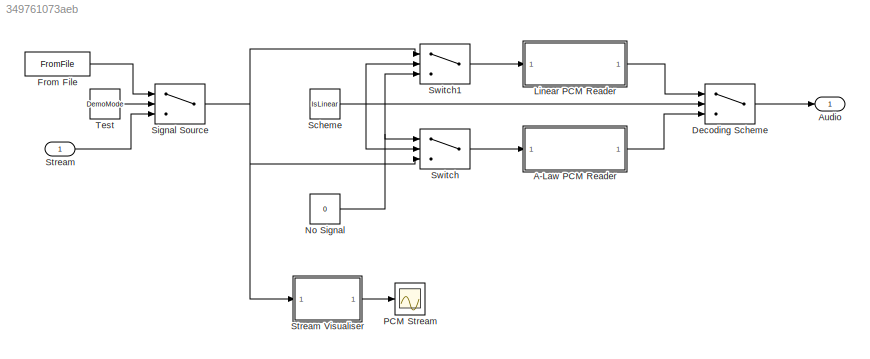
MODEL slx_349761073aeb
KIND model
CONFIG AbsTol = auto
CONFIG EnableMultiTasking = off
CONFIG FixedStep = 1/(48e-7)
CONFIG MaxStep = 1e-5
CONFIG MinStep = auto
CONFIG RelTol = 1e-3
CONFIG SampleTimeConstraint = Unconstrained
CONFIG SolverName = VariableStepAuto
CONFIG StartTime = 0.0
CONFIG StopTime = 1e-3 - eps
WORKSPACE source: mxarray member
WORKSPACE BitDepth = 4
WORKSPACE DecimationFactor = 3
WORKSPACE DemoMode = 1
WORKSPACE IirDenominatorCoefficients = [1 1]
WORKSPACE IirNumeratorCoefficients = [1 1]
WORKSPACE IsLinear = 1
WORKSPACE LowerSaturation = -2.5
WORKSPACE NoiseGate = 0
WORKSPACE SampleRate = 48000
WORKSPACE UpperSaturation = 2.5
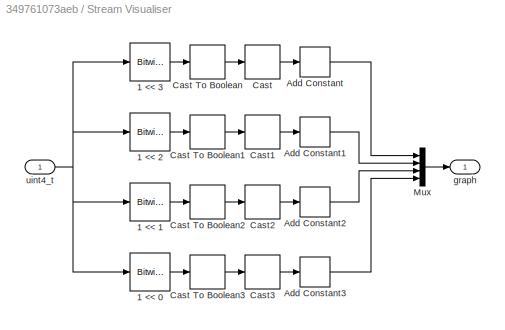
BLOCK [SubSystem]  Stream Visualiser
  Ports = [1, 1]
  RequestExecContextInheritance = off
BLOCK [Reference]  Stream Visualiser/1 << 0  REF=simulink/Logic and Bit
Operations/Bitwise
Operator
  Ports = [1, 1]
  SourceBlock = simulink/Logic and Bit\nOperations/Bitwise\nOperator
  SourceProductBaseCode = SL
  SourceType = Bitwise Operator
BLOCK [Reference]  Stream Visualiser/1 << 1  REF=simulink/Logic and Bit
Operations/Bitwise
Operator
  Ports = [1, 1]
  SourceBlock = simulink/Logic and Bit\nOperations/Bitwise\nOperator
  SourceProductBaseCode = SL
  SourceType = Bitwise Operator
BLOCK [Reference]  Stream Visualiser/1 << 2  REF=simulink/Logic and Bit
Operations/Bitwise
Operator
  Ports = [1, 1]
  SourceBlock = simulink/Logic and Bit\nOperations/Bitwise\nOperator
  SourceProductBaseCode = SL
  SourceType = Bitwise Operator
BLOCK [Reference]  Stream Visualiser/1 << 3  REF=simulink/Logic and Bit
Operations/Bitwise
Operator
  Ports = [1, 1]
  SourceBlock = simulink/Logic and Bit\nOperations/Bitwise\nOperator
  SourceProductBaseCode = SL
  SourceType = Bitwise Operator
BLOCK [Bias]  Stream Visualiser/Add Constant
  Bias = 6
  SaturateOnIntegerOverflow = off
BLOCK [Bias]  Stream Visualiser/Add Constant1
  Bias = 4
  SaturateOnIntegerOverflow = off
BLOCK [Bias]  Stream Visualiser/Add Constant2
  Bias = 2
  SaturateOnIntegerOverflow = off
BLOCK [Bias]  Stream Visualiser/Add Constant3
  SaturateOnIntegerOverflow = off
BLOCK [DataTypeConversion]  Stream Visualiser/Cast
  OutDataTypeStr = int16
  RndMeth = Floor
  SaturateOnIntegerOverflow = off
BLOCK [DataTypeConversion]  Stream Visualiser/Cast To Boolean
  OutDataTypeStr = boolean
  RndMeth = Floor
  SaturateOnIntegerOverflow = off
BLOCK [DataTypeConversion]  Stream Visualiser/Cast To Boolean1
  OutDataTypeStr = boolean
  RndMeth = Floor
  SaturateOnIntegerOverflow = off
BLOCK [DataTypeConversion]  Stream Visualiser/Cast To Boolean2
  OutDataTypeStr = boolean
  RndMeth = Floor
  SaturateOnIntegerOverflow = off
BLOCK [DataTypeConversion]  Stream Visualiser/Cast To Boolean3
  OutDataTypeStr = boolean
  RndMeth = Floor
  SaturateOnIntegerOverflow = off
BLOCK [DataTypeConversion]  Stream Visualiser/Cast1
  OutDataTypeStr = int16
  RndMeth = Floor
  SaturateOnIntegerOverflow = off
BLOCK [DataTypeConversion]  Stream Visualiser/Cast2
  OutDataTypeStr = int16
  RndMeth = Floor
  SaturateOnIntegerOverflow = off
BLOCK [DataTypeConversion]  Stream Visualiser/Cast3
  OutDataTypeStr = int16
  RndMeth = Floor
  SaturateOnIntegerOverflow = off
BLOCK [Mux]  Stream Visualiser/Mux
  DisplayOption = bar
  Ports = [4, 1]
BLOCK [Outport]  Stream Visualiser/graph
BLOCK [Inport]  Stream Visualiser/uint4_t
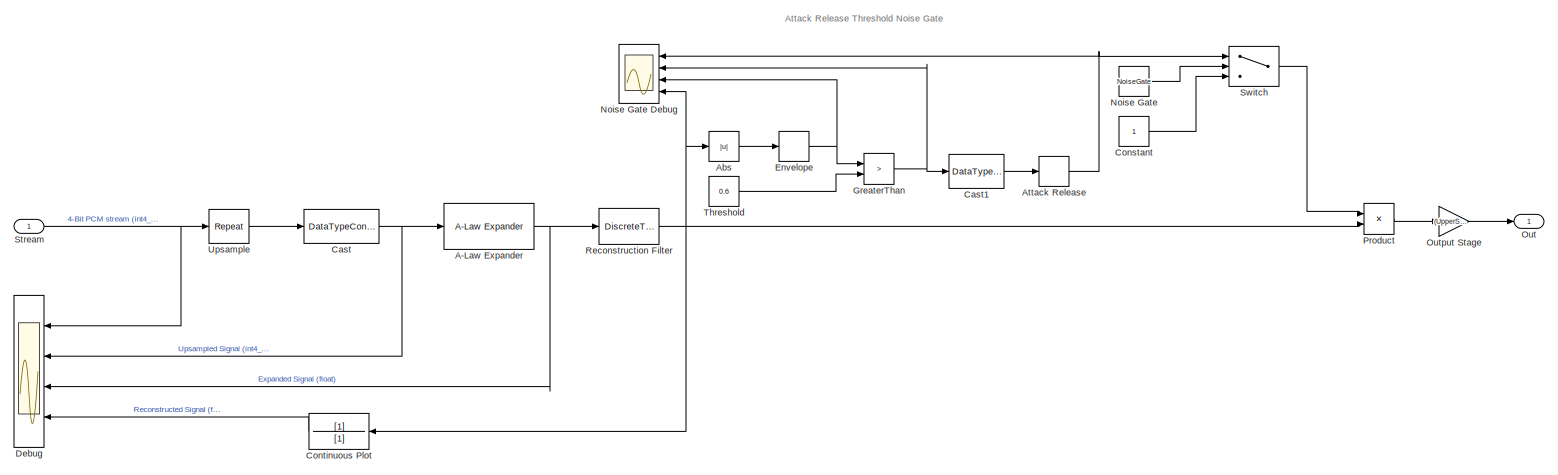
[diagram: A-Law PCM Reader - part 1/1, most of the canvas]
BLOCK [SubSystem] A-Law PCM Reader
  Ports = [1, 1]
  RequestExecContextInheritance = off
BLOCK [Reference] A-Law PCM Reader/A-Law Expander  REF=commsrccod2/A-Law
Expander
  Ports = [1, 1]
  SourceBlock = commsrccod2/A-Law\nExpander
  SourceProductBaseCode = CM
  SourceType = A-Law Expander
BLOCK [Abs] A-Law PCM Reader/Abs
  SaturateOnIntegerOverflow = off
BLOCK [RateLimiter] A-Law PCM Reader/Attack Release
  FallingSlewLimit = -SampleRate/3000
  RisingSlewLimit = SampleRate/300
  SampleTimeMode = inherited
BLOCK [DataTypeConversion] A-Law PCM Reader/Cast
  OutDataTypeStr = double
  RndMeth = Floor
  SaturateOnIntegerOverflow = off
BLOCK [DataTypeConversion] A-Law PCM Reader/Cast1
  OutDataTypeStr = double
  RndMeth = Floor
  SaturateOnIntegerOverflow = off
BLOCK [Constant] A-Law PCM Reader/Constant
BLOCK [TransferFcn] A-Law PCM Reader/Continuous Plot
  ContinuousStateAttributes = ''Continuous"
  Denominator = [1]
BLOCK [Scope] A-Law PCM Reader/Debug
  DefaultConfigurationName = spbscopes.TimeScopeBlockCfg
  Floating = off
  NumInputPorts = 4
  Ports = [4]
  ScopeSpecificationString = spbscopes.TimeScopeBlockCfg('CurrentConfiguration', extmgr.ConfigurationSet(extmgr.Configuration('Core','General UI',true,'DisplayFullSourceName',true),extmgr.Configuration('Core','Source UI',true),extmgr.Configuration('Sources','WiredSimulink',true,'DataLoggingVariableName','ScopeData2'),extmgr.Configuration('Visuals','Time Domain',true,'DisplayPropertyDefaults',struct('MinYLimReal','-2.00277','M...<+1992ch>
  UserDataPersistent = on
BLOCK [RateLimiter] A-Law PCM Reader/Envelope
  FallingSlewLimit = -SampleRate/1000
  RisingSlewLimit = SampleRate/4
  SampleTimeMode = inherited
BLOCK [RelationalOperator] A-Law PCM Reader/GreaterThan
  InputSameDT = off
  Operator = >
  OutDataTypeStr = boolean
  Ports = [2, 1]
  RndMeth = Simplest
BLOCK [Constant] A-Law PCM Reader/Noise Gate
  Value = NoiseGate
BLOCK [Scope] A-Law PCM Reader/Noise Gate Debug
  DefaultConfigurationName = spbscopes.TimeScopeBlockCfg
  Floating = off
  NumInputPorts = 4
  Ports = [4]
  ScopeSpecificationString = spbscopes.TimeScopeBlockCfg('CurrentConfiguration', extmgr.ConfigurationSet(extmgr.Configuration('Core','General UI',true),extmgr.Configuration('Core','Source UI',true),extmgr.Configuration('Sources','WiredSimulink',true,'DataLoggingVariableName','ScopeData1'),extmgr.Configuration('Visuals','Time Domain',true,'DisplayPropertyDefaults',struct('MinYLimReal','-4.71127','MaxYLimReal','8.68196','YLabel...<+1831ch>
  UserDataPersistent = on
BLOCK [Outport] A-Law PCM Reader/Out
BLOCK [Gain] A-Law PCM Reader/Output Stage
  Gain = (UpperSaturation - LowerSaturation)/(2^BitDepth - 1)
BLOCK [Product] A-Law PCM Reader/Product
  Ports = [2, 1]
BLOCK [DiscreteTransferFcn] A-Law PCM Reader/Reconstruction Filter
  Denominator = IirDenominatorCoefficients
  InputPortMap = u0
  Numerator = IirNumeratorCoefficients
  Ports = [1, 1]
BLOCK [Inport] A-Law PCM Reader/Stream
BLOCK [Switch] A-Law PCM Reader/Switch
  Criteria = u2 > Threshold
  InputSameDT = off
  SaturateOnIntegerOverflow = off
BLOCK [Constant] A-Law PCM Reader/Threshold
  Value = 0.6
BLOCK [Reference] A-Law PCM Reader/Upsample  REF=dspsigops/Repeat
  Ports = [1, 1]
  SourceBlock = dspsigops/Repeat
  SourceProductBaseCode = DS
  SourceType = Repeat
  UserDataPersistent = on
BLOCK [Outport] Audio
  OutDataTypeStr = double
  VarSizeSig = No
BLOCK [Switch] Decoding Scheme
  Criteria = u2 > Threshold
  InputSameDT = off
  SaturateOnIntegerOverflow = off
BLOCK [FromFile] From File
  ExtrapolationBeforeFirstDataPoint = Hold first value
  FileName = test_stream.mat
  InterpolationWithinTimeRange = Zero order hold
  OutDataTypeStr = int16
  SampleTime = DecimationFactor/SampleRate
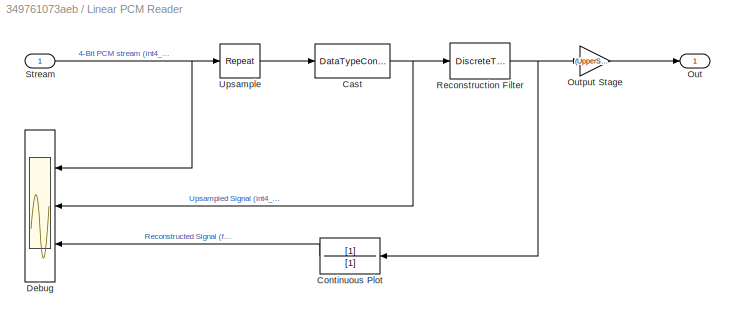
BLOCK [SubSystem] Linear PCM Reader
  Ports = [1, 1]
  RequestExecContextInheritance = off
BLOCK [DataTypeConversion] Linear PCM Reader/Cast
  OutDataTypeStr = double
  RndMeth = Floor
  SaturateOnIntegerOverflow = off
BLOCK [TransferFcn] Linear PCM Reader/Continuous Plot
  ContinuousStateAttributes = ''Continuous"
  Denominator = [1]
BLOCK [Scope] Linear PCM Reader/Debug
  DefaultConfigurationName = spbscopes.TimeScopeBlockCfg
  Floating = off
  NumInputPorts = 3
  Ports = [3]
  ScopeSpecificationString = spbscopes.TimeScopeBlockCfg('CurrentConfiguration', extmgr.ConfigurationSet(extmgr.Configuration('Core','General UI',true,'DisplayFullSourceName',true),extmgr.Configuration('Core','Source UI',true),extmgr.Configuration('Sources','WiredSimulink',true,'DataLoggingVariableName','ScopeData1'),extmgr.Configuration('Visuals','Time Domain',true,'DisplayPropertyDefaults',struct('MinYLimReal','-8.75','MaxY...<+1861ch>
  UserDataPersistent = on
BLOCK [Outport] Linear PCM Reader/Out
BLOCK [Gain] Linear PCM Reader/Output Stage
  Gain = (UpperSaturation - LowerSaturation)/(2^BitDepth - 1)
BLOCK [DiscreteTransferFcn] Linear PCM Reader/Reconstruction Filter
  Denominator = IirDenominatorCoefficients
  InputPortMap = u0
  Numerator = IirNumeratorCoefficients
  Ports = [1, 1]
BLOCK [Inport] Linear PCM Reader/Stream
BLOCK [Reference] Linear PCM Reader/Upsample  REF=dspsigops/Repeat
  Ports = [1, 1]
  SourceBlock = dspsigops/Repeat
  SourceProductBaseCode = DS
  SourceType = Repeat
  UserDataPersistent = on
BLOCK [Constant] No Signal
  OutDataTypeStr = int16
  SampleTime = DecimationFactor/SampleRate
  Value = 0
BLOCK [Scope] PCM Stream
  Floating = off
  NumInputPorts = 1
  Ports = [1]
  ScopeSpecificationString = Simulink.scopes.TimeScopeBlockCfg('CurrentConfiguration', extmgr.ConfigurationSet(extmgr.Configuration('Core','General UI',true,'DisplayFullSourceName',true),extmgr.Configuration('Core','Source UI',true),extmgr.Configuration('Sources','WiredSimulink',true,'DataLoggingVariableName','ScopeData1'),extmgr.Configuration('Visuals','Time Domain',true,'SerializedDisplays',{struct('MinYLimReal','-0.875','M...<+1562ch>
BLOCK [Constant] Scheme
  Value = IsLinear
BLOCK [Switch] Signal Source
  Criteria = u2 > Threshold
  InputSameDT = off
  SaturateOnIntegerOverflow = off
BLOCK [Inport] Stream
  Interpolate = off
  OutDataTypeStr = int16
  SampleTime = DecimationFactor/SampleRate
  VarSizeSig = No
BLOCK [Switch] Switch
  Criteria = u2 > Threshold
  InputSameDT = off
  SaturateOnIntegerOverflow = off
BLOCK [Switch] Switch1
  Criteria = u2 > Threshold
  InputSameDT = off
  SaturateOnIntegerOverflow = off
BLOCK [Constant] Test
  Value = DemoMode
ANNOTATION A-Law PCM Reader: Attack Release Threshold Noise Gate
LINE  Stream Visualiser/1 << 0:1 ->  Stream Visualiser/Cast To Boolean3:1
LINE  Stream Visualiser/1 << 1:1 ->  Stream Visualiser/Cast To Boolean2:1
LINE  Stream Visualiser/1 << 2:1 ->  Stream Visualiser/Cast To Boolean1:1
LINE  Stream Visualiser/1 << 3:1 ->  Stream Visualiser/Cast To Boolean:1
LINE  Stream Visualiser/Add Constant1:1 ->  Stream Visualiser/Mux:2
LINE  Stream Visualiser/Add Constant2:1 ->  Stream Visualiser/Mux:3
LINE  Stream Visualiser/Add Constant3:1 ->  Stream Visualiser/Mux:4
LINE  Stream Visualiser/Add Constant:1 ->  Stream Visualiser/Mux:1
LINE  Stream Visualiser/Cast To Boolean1:1 ->  Stream Visualiser/Cast1:1
LINE  Stream Visualiser/Cast To Boolean2:1 ->  Stream Visualiser/Cast2:1
LINE  Stream Visualiser/Cast To Boolean3:1 ->  Stream Visualiser/Cast3:1
LINE  Stream Visualiser/Cast To Boolean:1 ->  Stream Visualiser/Cast:1
LINE  Stream Visualiser/Cast1:1 ->  Stream Visualiser/Add Constant1:1
LINE  Stream Visualiser/Cast2:1 ->  Stream Visualiser/Add Constant2:1
LINE  Stream Visualiser/Cast3:1 ->  Stream Visualiser/Add Constant3:1
LINE  Stream Visualiser/Cast:1 ->  Stream Visualiser/Add Constant:1
LINE  Stream Visualiser/Mux:1 ->  Stream Visualiser/graph:1
NET  Stream Visualiser/uint4_t:1 ->  Stream Visualiser/1 << 0:1,  Stream Visualiser/1 << 1:1,  Stream Visualiser/1 << 2:1,  Stream Visualiser/1 << 3:1
LINE  Stream Visualiser:1 -> PCM Stream:1
NET A-Law PCM Reader/A-Law Expander:1 -> A-Law PCM Reader/Debug:3, A-Law PCM Reader/Reconstruction Filter:1
LINE A-Law PCM Reader/Abs:1 -> A-Law PCM Reader/Envelope:1
NET A-Law PCM Reader/Attack Release:1 -> A-Law PCM Reader/Noise Gate Debug:1, A-Law PCM Reader/Switch:1
LINE A-Law PCM Reader/Cast1:1 -> A-Law PCM Reader/Attack Release:1
NET A-Law PCM Reader/Cast:1 -> A-Law PCM Reader/A-Law Expander:1, A-Law PCM Reader/Debug:2
LINE A-Law PCM Reader/Constant:1 -> A-Law PCM Reader/Switch:3
LINE A-Law PCM Reader/Continuous Plot:1 -> A-Law PCM Reader/Debug:4
NET A-Law PCM Reader/Envelope:1 -> A-Law PCM Reader/GreaterThan:1, A-Law PCM Reader/Noise Gate Debug:3
NET A-Law PCM Reader/GreaterThan:1 -> A-Law PCM Reader/Cast1:1, A-Law PCM Reader/Noise Gate Debug:2
LINE A-Law PCM Reader/Noise Gate:1 -> A-Law PCM Reader/Switch:2
LINE A-Law PCM Reader/Output Stage:1 -> A-Law PCM Reader/Out:1
LINE A-Law PCM Reader/Product:1 -> A-Law PCM Reader/Output Stage:1
NET A-Law PCM Reader/Reconstruction Filter:1 -> A-Law PCM Reader/Abs:1, A-Law PCM Reader/Continuous Plot:1, A-Law PCM Reader/Noise Gate Debug:4, A-Law PCM Reader/Product:2
NET A-Law PCM Reader/Stream:1 -> A-Law PCM Reader/Debug:1, A-Law PCM Reader/Upsample:1
LINE A-Law PCM Reader/Switch:1 -> A-Law PCM Reader/Product:1
LINE A-Law PCM Reader/Threshold:1 -> A-Law PCM Reader/GreaterThan:2
LINE A-Law PCM Reader/Upsample:1 -> A-Law PCM Reader/Cast:1
LINE A-Law PCM Reader:1 -> Decoding Scheme:3
LINE Decoding Scheme:1 -> Audio:1
LINE From File:1 -> Signal Source:1
NET Linear PCM Reader/Cast:1 -> Linear PCM Reader/Debug:2, Linear PCM Reader/Reconstruction Filter:1
LINE Linear PCM Reader/Continuous Plot:1 -> Linear PCM Reader/Debug:3
LINE Linear PCM Reader/Output Stage:1 -> Linear PCM Reader/Out:1
NET Linear PCM Reader/Reconstruction Filter:1 -> Linear PCM Reader/Continuous Plot:1, Linear PCM Reader/Output Stage:1
NET Linear PCM Reader/Stream:1 -> Linear PCM Reader/Debug:1, Linear PCM Reader/Upsample:1
LINE Linear PCM Reader/Upsample:1 -> Linear PCM Reader/Cast:1
LINE Linear PCM Reader:1 -> Decoding Scheme:1
NET No Signal:1 -> Switch1:3, Switch:1
NET Scheme:1 -> Decoding Scheme:2, Switch1:2, Switch:2
NET Signal Source:1 ->  Stream Visualiser:1, Switch1:1, Switch:3
LINE Stream:1 -> Signal Source:3
LINE Switch1:1 -> Linear PCM Reader:1
LINE Switch:1 -> A-Law PCM Reader:1
LINE Test:1 -> Signal Source:2
note: NET lines group one-source signal fan-out (src -> all destinations, sorted); 1:1 wires keep LINE
